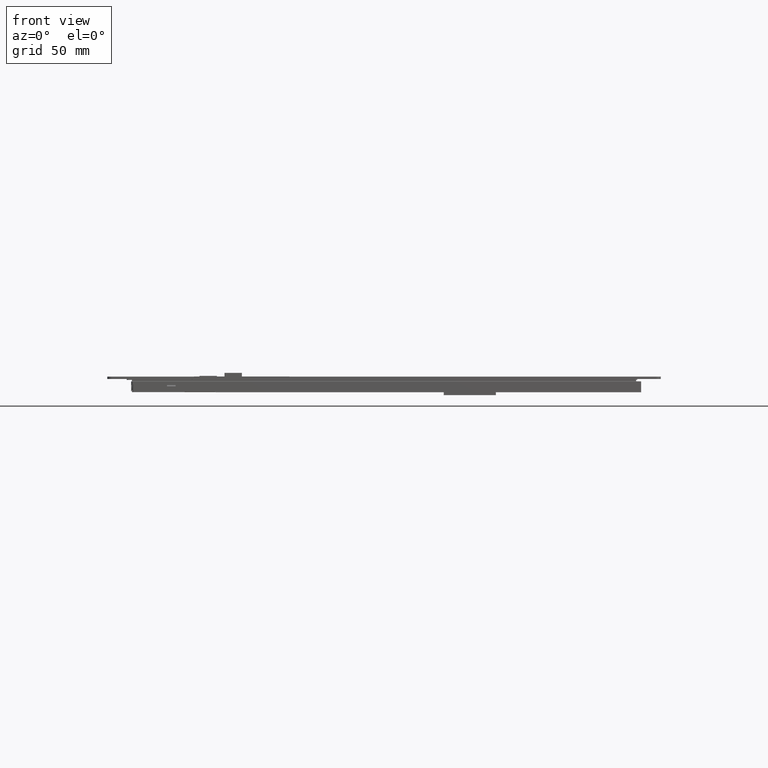
[diagram: clean part render]
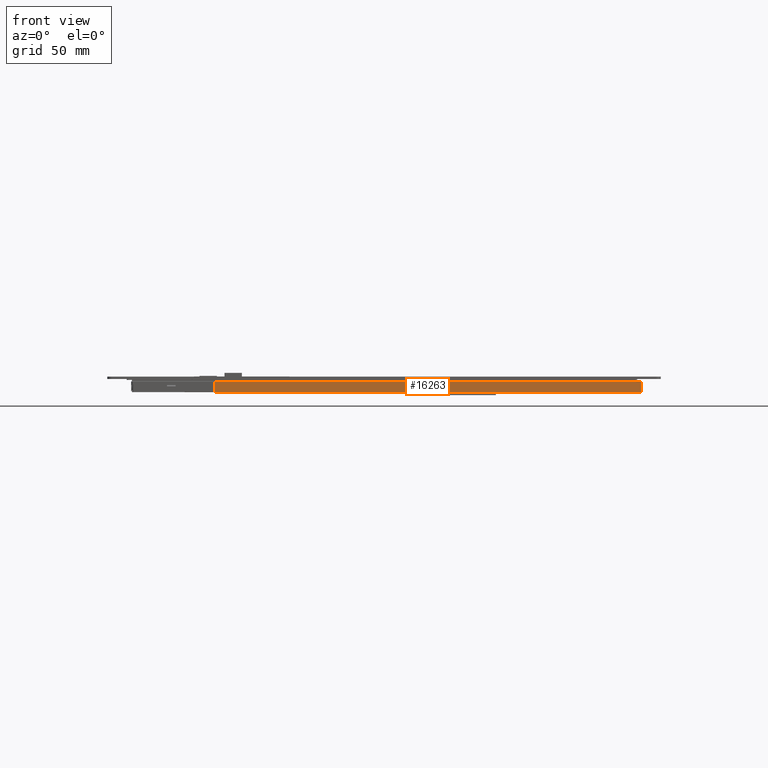
[diagram: same view with one face highlighted and labeled with its STEP entity id]
A machine part, front view. The second image highlights one B-rep face of the part: STEP entity #16263.
In plain terms, the highlighted planar face has unit normal (-0, -1, 0).
Its self-contained STEP definition (entity closure, byte-faithful):
#340=PLANE('',#17266);
#1129=FACE_OUTER_BOUND('',#2041,.T.);
#2041=EDGE_LOOP('',(#12587,#12588,#12589,#12590));
#3314=LINE('',#24161,#5435);
#3322=LINE('',#24178,#5443);
#3326=LINE('',#24185,#5447);
#3331=LINE('',#24195,#5452);
#5435=VECTOR('',#19366,10.);
#5443=VECTOR('',#19380,10.);
#5447=VECTOR('',#19390,10.);
#5452=VECTOR('',#19397,10.);
#7683=VERTEX_POINT('',#24158);
#7684=VERTEX_POINT('',#24160);
#7689=VERTEX_POINT('',#24175);
#7690=VERTEX_POINT('',#24177);
#9490=EDGE_CURVE('',#7684,#7683,#3314,.T.);
#9500=EDGE_CURVE('',#7689,#7690,#3322,.T.);
#9504=EDGE_CURVE('',#7684,#7689,#3326,.T.);
#9509=EDGE_CURVE('',#7683,#7690,#3331,.T.);
#12587=ORIENTED_EDGE('',*,*,#9490,.T.);
#12588=ORIENTED_EDGE('',*,*,#9509,.T.);
#12589=ORIENTED_EDGE('',*,*,#9500,.F.);
#12590=ORIENTED_EDGE('',*,*,#9504,.F.);
#16263=ADVANCED_FACE('',(#1129),#340,.T.);
#17266=AXIS2_PLACEMENT_3D('',#24194,#19395,#19396);
#19366=DIRECTION('',(-2.33145681158736E-16,2.86245104878699E-17,1.));
#19380=DIRECTION('',(-2.33145681158736E-16,2.86245104878699E-17,1.));
#19390=DIRECTION('',(-1.,4.44089209850062E-16,-2.33145681158736E-16));
#19395=DIRECTION('center_axis',(-4.44089209850062E-16,-1.,2.86245104878698E-17));
#19396=DIRECTION('ref_axis',(-1.,4.44089209850062E-16,-2.33145681158736E-16));
#19397=DIRECTION('',(-1.,4.44089209850062E-16,-2.33145681158736E-16));
#24158=CARTESIAN_POINT('',(118.5,-71.4299999999931,-2.45999999999997));
#24160=CARTESIAN_POINT('',(118.5,-71.4299999999931,-7.20999999999997));
#24161=CARTESIAN_POINT('',(118.5,-71.4299999999931,-7.20999999999997));
#24175=CARTESIAN_POINT('',(-77.8300000000001,-71.4299999999931,-7.21000000000002));
#24177=CARTESIAN_POINT('',(-77.8300000000001,-71.4299999999931,-2.46000000000002));
#24178=CARTESIAN_POINT('',(-77.8300000000001,-71.4299999999931,-7.21000000000002));
#24185=CARTESIAN_POINT('',(118.5,-71.4299999999931,-7.20999999999997));
#24194=CARTESIAN_POINT('Origin',(118.5,-71.4299999999931,-4.83499999999997));
#24195=CARTESIAN_POINT('',(118.5,-71.4299999999931,-2.45999999999997));